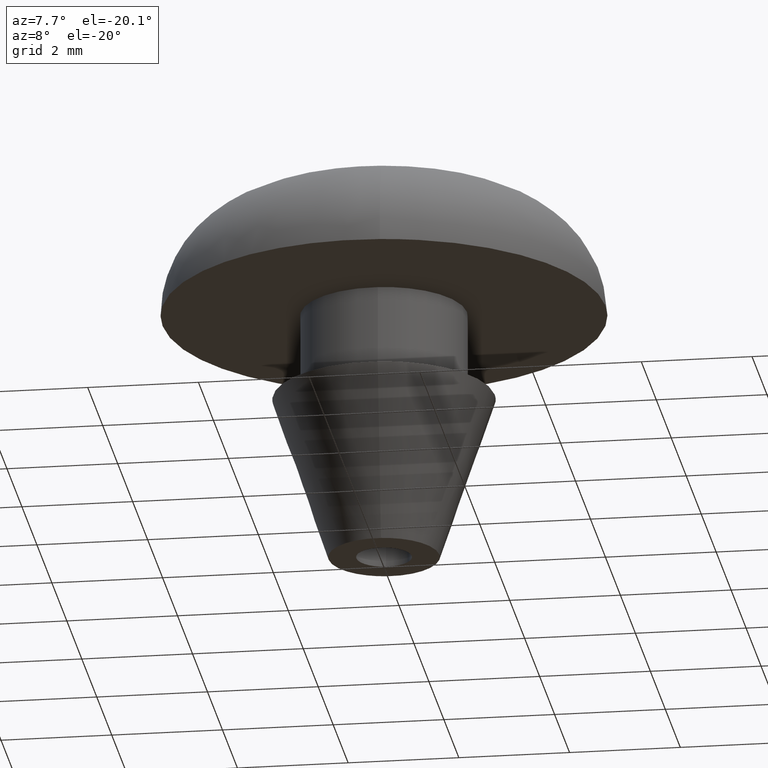
[diagram: clean part render]
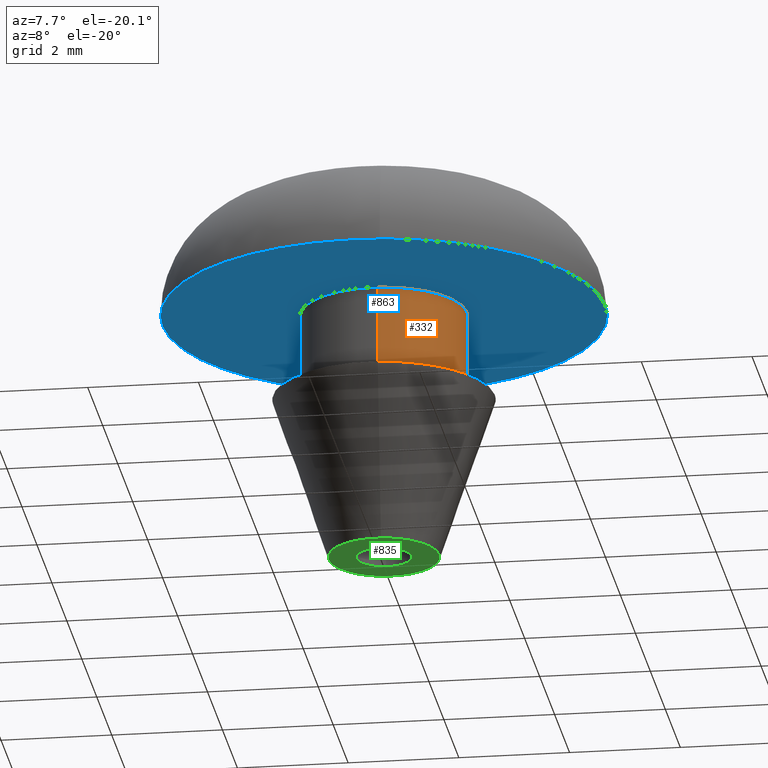
[diagram: same view with three faces highlighted in distinct colors, each labeled with its STEP entity id]
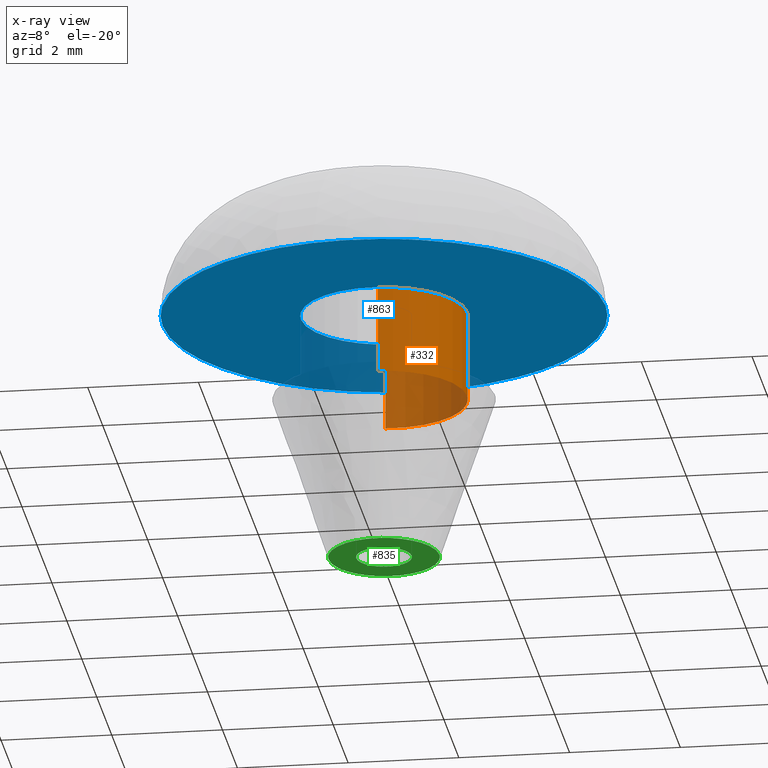
[diagram: x-ray of the same camera — body ghosted, the three highlighted faces saturated]
A machine part, auxiliary view with three faces highlighted in distinct colors.
The next image is the same camera in x-ray (body ghosted, the three faces saturated) — at least one of them is partly hidden behind the body in this view.
Their STEP definitions:

[orange] entity #332 — the highlighted face is a freeform B-spline surface patch.
#230=CARTESIAN_POINT('',(-0.177051351985138,1.489514289545500,4.640000000000001));
#231=CARTESIAN_POINT('',(-0.134422092956966,1.494581423172908,4.640000000000001));
#232=CARTESIAN_POINT('',(-0.091572809302285,1.497202197632800,4.640000000000001));
#233=CARTESIAN_POINT('',(1.405629388330515,1.588775006935085,4.640000000000001));
#234=CARTESIAN_POINT('',(1.497202197632800,0.091572809302285,4.640000000000001));
#235=CARTESIAN_POINT('',(1.588775006935085,-1.405629388330515,4.640000000000001));
#236=CARTESIAN_POINT('',(0.091572809302285,-1.497202197632800,4.640000000000001));
#237=CARTESIAN_POINT('',(-0.177051351985138,1.489514289545500,2.959000000000000));
#238=CARTESIAN_POINT('',(-0.134422092956966,1.494581423172908,2.959000000000001));
#239=CARTESIAN_POINT('',(-0.091572809302285,1.497202197632800,2.959000000000000));
#240=CARTESIAN_POINT('',(1.405629388330515,1.588775006935085,2.959000000000000));
#241=CARTESIAN_POINT('',(1.497202197632800,0.091572809302285,2.959000000000000));
#242=CARTESIAN_POINT('',(1.588775006935085,-1.405629388330515,2.959000000000000));
#243=CARTESIAN_POINT('',(0.091572809302285,-1.497202197632800,2.959000000000000));
#251=(BOUNDED_SURFACE()B_SPLINE_SURFACE(2,1,((#230,#237),(#231,#238),(#232,#239),(#233,#240),(#234,#241),(#235,#242),(#236,#243)),.UNSPECIFIED.,.F.,.F.,.U.)B_SPLINE_SURFACE_WITH_KNOTS((3,2,2,3),(2,2),(3.078760800517997,3.141592653589793,4.712388980384690,6.283185307179586),(0.0,1.0),.UNSPECIFIED.)GEOMETRIC_REPRESENTATION_ITEM()RATIONAL_B_SPLINE_SURFACE(((0.977505800795127,0.977505800795127),(0.988284271247462,0.988284271247462),(1.0,1.0),(0.707106781186548,0.707106781186548),(1.0,1.0),(0.707106781186548,0.707106781186548),(1.0,1.0)))REPRESENTATION_ITEM('')SURFACE());
#252=CARTESIAN_POINT('',(-0.177050448908415,1.489514396889302,4.599999999999993));
#253=VERTEX_POINT('',#252);
#254=CARTESIAN_POINT('',(1.500000000000000,0.0,4.600000000000000));
#255=VERTEX_POINT('',#254);
#256=CARTESIAN_POINT('',(-0.177050448908415,1.489514396889302,4.599999999999993));
#257=CARTESIAN_POINT('',(-0.088835266854029,1.500000000000000,4.600000000000000));
#258=CARTESIAN_POINT('',(0.0,1.500000000000000,4.600000000000000));
#259=CARTESIAN_POINT('',(1.500000000000000,1.500000000000000,4.599999999999999));
#260=CARTESIAN_POINT('',(1.500000000000000,0.0,4.600000000000000));
#268=(BOUNDED_CURVE()B_SPLINE_CURVE(2,(#256,#257,#258,#259,#260),.UNSPECIFIED.,.F.,.U.)B_SPLINE_CURVE_WITH_KNOTS((3,2,3),(0.229562678445430,0.250000000000000,0.500000000000000),.UNSPECIFIED.)CURVE()GEOMETRIC_REPRESENTATION_ITEM()RATIONAL_B_SPLINE_CURVE((0.956027155859047,0.976056188423826,1.0,0.707106781186548,1.0))REPRESENTATION_ITEM(''));
#269=EDGE_CURVE('',#253,#255,#268,.T.);
#270=ORIENTED_EDGE('',*,*,#269,.T.);
#271=CARTESIAN_POINT('',(0.091571162752735,-1.497202298338268,4.600000000000012));
#272=VERTEX_POINT('',#271);
#273=CARTESIAN_POINT('',(1.500000000000000,0.0,4.600000000000000));
#274=CARTESIAN_POINT('',(1.500000000000000,-1.411060655072693,4.600000000000001));
#275=CARTESIAN_POINT('',(0.091571162752735,-1.497202298338268,4.600000000000014));
#283=(BOUNDED_CURVE()B_SPLINE_CURVE(2,(#273,#274,#275),.UNSPECIFIED.,.F.,.U.)B_SPLINE_CURVE_WITH_KNOTS((3,3),(0.500000000000000,0.739333152000493),.UNSPECIFIED.)CURVE()GEOMETRIC_REPRESENTATION_ITEM()RATIONAL_B_SPLINE_CURVE((1.0,0.719603770967226,0.976072448362179))REPRESENTATION_ITEM(''));
#284=EDGE_CURVE('',#255,#272,#283,.T.);
#285=ORIENTED_EDGE('',*,*,#284,.T.);
#286=CARTESIAN_POINT('',(0.091571182612992,-1.497202297123606,3.0));
#287=VERTEX_POINT('',#286);
#288=CARTESIAN_POINT('',(0.091571162752735,-1.497202298338268,4.600000000000012));
#289=CARTESIAN_POINT('',(0.091571182612992,-1.497202297123606,3.0));
#290=QUASI_UNIFORM_CURVE('',1,(#288,#289),.UNSPECIFIED.,.F.,.U.);
#291=EDGE_CURVE('',#272,#287,#290,.T.);
#292=ORIENTED_EDGE('',*,*,#291,.T.);
#293=CARTESIAN_POINT('',(1.500000000000000,0.0,3.0));
#294=VERTEX_POINT('',#293);
#295=CARTESIAN_POINT('',(1.500000000000000,0.0,3.0));
#296=CARTESIAN_POINT('',(1.500000000000000,-1.411060636320122,3.000000000000000));
#297=CARTESIAN_POINT('',(0.091571182612992,-1.497202297123605,3.000000000000001));
#305=(BOUNDED_CURVE()B_SPLINE_CURVE(2,(#295,#296,#297),.UNSPECIFIED.,.F.,.U.)B_SPLINE_CURVE_WITH_KNOTS((3,3),(0.500000000000000,0.739333149711674),.UNSPECIFIED.)CURVE()GEOMETRIC_REPRESENTATION_ITEM()RATIONAL_B_SPLINE_CURVE((1.0,0.719603773648744,0.976072443456796))REPRESENTATION_ITEM(''));
#306=EDGE_CURVE('',#294,#287,#305,.T.);
#307=ORIENTED_EDGE('',*,*,#306,.F.);
#308=CARTESIAN_POINT('',(-0.177050459774724,1.489514395597690,3.0));
#309=VERTEX_POINT('',#308);
#310=CARTESIAN_POINT('',(-0.177050459774724,1.489514395597690,3.000000000000001));
#311=CARTESIAN_POINT('',(-0.088835277835213,1.500000000000000,3.000000000000000));
#312=CARTESIAN_POINT('',(0.0,1.500000000000000,3.0));
#313=CARTESIAN_POINT('',(1.500000000000000,1.500000000000000,3.0));
#314=CARTESIAN_POINT('',(1.500000000000000,0.0,3.0));
#322=(BOUNDED_CURVE()B_SPLINE_CURVE(2,(#310,#311,#312,#313,#314),.UNSPECIFIED.,.F.,.U.)B_SPLINE_CURVE_WITH_KNOTS((3,2,3),(0.229562675979604,0.250000000000000,0.500000000000000),.UNSPECIFIED.)CURVE()GEOMETRIC_REPRESENTATION_ITEM()RATIONAL_B_SPLINE_CURVE((0.956027151025916,0.976056185534931,1.0,0.707106781186548,1.0))REPRESENTATION_ITEM(''));
#323=EDGE_CURVE('',#309,#294,#322,.T.);
#324=ORIENTED_EDGE('',*,*,#323,.F.);
#325=CARTESIAN_POINT('',(-0.177050448908415,1.489514396889302,4.599999999999993));
#326=CARTESIAN_POINT('',(-0.177050459774724,1.489514395597690,3.0));
#327=QUASI_UNIFORM_CURVE('',1,(#325,#326),.UNSPECIFIED.,.F.,.U.);
#328=EDGE_CURVE('',#253,#309,#327,.T.);
#329=ORIENTED_EDGE('',*,*,#328,.F.);
#330=EDGE_LOOP('',(#270,#285,#292,#307,#324,#329));
#331=FACE_OUTER_BOUND('',#330,.T.);
#332=ADVANCED_FACE('',(#331),#251,.T.);

[blue] entity #863 — the highlighted face is a freeform B-spline surface patch.
#252=CARTESIAN_POINT('',(-0.177050448908415,1.489514396889302,4.599999999999993));
#253=VERTEX_POINT('',#252);
#254=CARTESIAN_POINT('',(1.500000000000000,0.0,4.600000000000000));
#255=VERTEX_POINT('',#254);
#256=CARTESIAN_POINT('',(-0.177050448908415,1.489514396889302,4.599999999999993));
#257=CARTESIAN_POINT('',(-0.088835266854029,1.500000000000000,4.600000000000000));
#258=CARTESIAN_POINT('',(0.0,1.500000000000000,4.600000000000000));
#259=CARTESIAN_POINT('',(1.500000000000000,1.500000000000000,4.599999999999999));
#260=CARTESIAN_POINT('',(1.500000000000000,0.0,4.600000000000000));
#268=(BOUNDED_CURVE()B_SPLINE_CURVE(2,(#256,#257,#258,#259,#260),.UNSPECIFIED.,.F.,.U.)B_SPLINE_CURVE_WITH_KNOTS((3,2,3),(0.229562678445430,0.250000000000000,0.500000000000000),.UNSPECIFIED.)CURVE()GEOMETRIC_REPRESENTATION_ITEM()RATIONAL_B_SPLINE_CURVE((0.956027155859047,0.976056188423826,1.0,0.707106781186548,1.0))REPRESENTATION_ITEM(''));
#269=EDGE_CURVE('',#253,#255,#268,.T.);
#271=CARTESIAN_POINT('',(0.091571162752735,-1.497202298338268,4.600000000000012));
#272=VERTEX_POINT('',#271);
#273=CARTESIAN_POINT('',(1.500000000000000,0.0,4.600000000000000));
#274=CARTESIAN_POINT('',(1.500000000000000,-1.411060655072693,4.600000000000001));
#275=CARTESIAN_POINT('',(0.091571162752735,-1.497202298338268,4.600000000000014));
#283=(BOUNDED_CURVE()B_SPLINE_CURVE(2,(#273,#274,#275),.UNSPECIFIED.,.F.,.U.)B_SPLINE_CURVE_WITH_KNOTS((3,3),(0.500000000000000,0.739333152000493),.UNSPECIFIED.)CURVE()GEOMETRIC_REPRESENTATION_ITEM()RATIONAL_B_SPLINE_CURVE((1.0,0.719603770967226,0.976072448362179))REPRESENTATION_ITEM(''));
#284=EDGE_CURVE('',#255,#272,#283,.T.);
#351=CARTESIAN_POINT('',(-1.500000000000000,0.0,4.600000000000000));
#352=VERTEX_POINT('',#351);
#353=CARTESIAN_POINT('',(-1.500000000000000,0.0,4.600000000000000));
#354=CARTESIAN_POINT('',(-1.500000000000000,1.332263415772623,4.600000000000000));
#355=CARTESIAN_POINT('',(-0.177050448908415,1.489514396889302,4.599999999999993));
#363=(BOUNDED_CURVE()B_SPLINE_CURVE(2,(#353,#354,#355),.UNSPECIFIED.,.F.,.U.)B_SPLINE_CURVE_WITH_KNOTS((3,3),(0.0,0.229562678445430),.UNSPECIFIED.)CURVE()GEOMETRIC_REPRESENTATION_ITEM()RATIONAL_B_SPLINE_CURVE((1.0,0.731050592762722,0.956027155859047))REPRESENTATION_ITEM(''));
#364=EDGE_CURVE('',#352,#253,#363,.T.);
#398=CARTESIAN_POINT('',(0.091571162752735,-1.497202298338268,4.600000000000014));
#399=CARTESIAN_POINT('',(0.045828319364795,-1.499999999999999,4.600000000000001));
#400=CARTESIAN_POINT('',(0.0,-1.500000000000000,4.600000000000000));
#401=CARTESIAN_POINT('',(-1.500000000000000,-1.500000000000000,4.599999999999999));
#402=CARTESIAN_POINT('',(-1.500000000000000,0.0,4.600000000000000));
#410=(BOUNDED_CURVE()B_SPLINE_CURVE(2,(#398,#399,#400,#401,#402),.UNSPECIFIED.,.F.,.U.)B_SPLINE_CURVE_WITH_KNOTS((3,2,3),(0.739333152000493,0.750000000000000,1.0),.UNSPECIFIED.)CURVE()GEOMETRIC_REPRESENTATION_ITEM()RATIONAL_B_SPLINE_CURVE((0.976072448362179,0.987503010219322,1.0,0.707106781186548,1.0))REPRESENTATION_ITEM(''));
#411=EDGE_CURVE('',#272,#352,#410,.T.);
#650=CARTESIAN_POINT('',(-4.0,0.0,4.600000000000000));
#651=VERTEX_POINT('',#650);
#665=CARTESIAN_POINT('',(0.461856760234681,-3.973246573398824,4.600000000000000));
#666=VERTEX_POINT('',#665);
#667=CARTESIAN_POINT('',(0.461856760234681,-3.973246573398825,4.600000000000000));
#668=CARTESIAN_POINT('',(0.231703157729662,-4.000000000000001,4.600000000000000));
#669=CARTESIAN_POINT('',(0.0,-4.0,4.600000000000000));
#670=CARTESIAN_POINT('',(-4.000000000000000,-4.000000000000000,4.599999999999999));
#671=CARTESIAN_POINT('',(-4.0,0.0,4.600000000000000));
#679=(BOUNDED_CURVE()B_SPLINE_CURVE(2,(#667,#668,#669,#670,#671),.UNSPECIFIED.,.F.,.U.)B_SPLINE_CURVE_WITH_KNOTS((3,2,3),(0.730000013374359,0.750000000000000,1.0),.UNSPECIFIED.)CURVE()GEOMETRIC_REPRESENTATION_ITEM()RATIONAL_B_SPLINE_CURVE((0.956886144514643,0.976568558163960,1.0,0.707106781186548,1.0))REPRESENTATION_ITEM(''));
#680=EDGE_CURVE('',#666,#651,#679,.T.);
#757=CARTESIAN_POINT('',(4.0,0.0,4.600000000000000));
#758=VERTEX_POINT('',#757);
#759=CARTESIAN_POINT('',(4.0,0.0,4.600000000000000));
#760=CARTESIAN_POINT('',(4.000000000000000,-3.561967086833224,4.600000000000000));
#761=CARTESIAN_POINT('',(0.461856760234681,-3.973246573398825,4.600000000000000));
#769=(BOUNDED_CURVE()B_SPLINE_CURVE(2,(#759,#760,#761),.UNSPECIFIED.,.F.,.U.)B_SPLINE_CURVE_WITH_KNOTS((3,3),(0.500000000000000,0.730000013374358),.UNSPECIFIED.)CURVE()GEOMETRIC_REPRESENTATION_ITEM()RATIONAL_B_SPLINE_CURVE((1.0,0.730538223022588,0.956886144514641))REPRESENTATION_ITEM(''));
#770=EDGE_CURVE('',#758,#666,#769,.T.);
#772=CARTESIAN_POINT('',(-4.0,0.0,4.600000000000000));
#773=CARTESIAN_POINT('',(-4.000000000000000,4.000000000000000,4.599999999999999));
#774=CARTESIAN_POINT('',(0.0,4.0,4.600000000000000));
#775=CARTESIAN_POINT('',(4.000000000000000,4.000000000000000,4.599999999999999));
#776=CARTESIAN_POINT('',(4.0,0.0,4.600000000000000));
#784=(BOUNDED_CURVE()B_SPLINE_CURVE(2,(#772,#773,#774,#775,#776),.UNSPECIFIED.,.F.,.U.)B_SPLINE_CURVE_WITH_KNOTS((3,2,3),(0.0,0.250000000000000,0.500000000000000),.UNSPECIFIED.)CURVE()GEOMETRIC_REPRESENTATION_ITEM()RATIONAL_B_SPLINE_CURVE((1.0,0.707106781186548,1.0,0.707106781186548,1.0))REPRESENTATION_ITEM(''));
#785=EDGE_CURVE('',#651,#758,#784,.T.);
#847=CARTESIAN_POINT('',(4.399599984494448,-4.399577243043528,4.600000000000000));
#848=CARTESIAN_POINT('',(-4.399600199071169,-4.399577243043528,4.600000000000000));
#849=CARTESIAN_POINT('',(4.399599984494448,4.399599117127109,4.600000000000000));
#850=CARTESIAN_POINT('',(-4.399600199071169,4.399599117127109,4.600000000000000));
#851=B_SPLINE_SURFACE_WITH_KNOTS('',1,1,((#847,#849),(#848,#850)),.UNSPECIFIED.,.F.,.F.,.U.,(2,2),(2,2),(0.0,8.799200183565617),(0.0,8.799176360170637),.UNSPECIFIED.);
#852=ORIENTED_EDGE('',*,*,#785,.T.);
#853=ORIENTED_EDGE('',*,*,#770,.T.);
#854=ORIENTED_EDGE('',*,*,#680,.T.);
#855=EDGE_LOOP('',(#852,#853,#854));
#856=FACE_OUTER_BOUND('',#855,.T.);
#857=ORIENTED_EDGE('',*,*,#284,.F.);
#858=ORIENTED_EDGE('',*,*,#269,.F.);
#859=ORIENTED_EDGE('',*,*,#364,.F.);
#860=ORIENTED_EDGE('',*,*,#411,.F.);
#861=EDGE_LOOP('',(#857,#858,#859,#860));
#862=FACE_BOUND('',#861,.T.);
#863=ADVANCED_FACE('',(#856,#862),#851,.T.);

[green] entity #835 — the highlighted face is a freeform B-spline surface patch.
#85=CARTESIAN_POINT('',(0.059017117343035,-0.496504763180091,-7.808428E-017));
#86=VERTEX_POINT('',#85);
#92=CARTESIAN_POINT('',(-0.500000000000000,0.0,0.0));
#93=VERTEX_POINT('',#92);
#94=CARTESIAN_POINT('',(0.059017117343035,-0.496504763180091,-7.808428E-017));
#95=CARTESIAN_POINT('',(0.029612059840765,-0.500000000000000,0.0));
#96=CARTESIAN_POINT('',(0.0,-0.500000000000000,0.0));
#97=CARTESIAN_POINT('',(-0.500000000000000,-0.500000000000000,0.0));
#98=CARTESIAN_POINT('',(-0.500000000000000,0.0,0.0));
#106=(BOUNDED_CURVE()B_SPLINE_CURVE(2,(#94,#95,#96,#97,#98),.UNSPECIFIED.,.F.,.U.)B_SPLINE_CURVE_WITH_KNOTS((3,2,3),(0.229562473505667,0.250000000000000,0.500000000000000),.UNSPECIFIED.)CURVE()GEOMETRIC_REPRESENTATION_ITEM()RATIONAL_B_SPLINE_CURVE((0.956026754168330,0.976055948321959,1.0,0.707106781186548,1.0))REPRESENTATION_ITEM(''));
#107=EDGE_CURVE('',#86,#93,#106,.T.);
#109=CARTESIAN_POINT('',(-0.030523833243788,0.499067425909480,4.579670E-016));
#110=VERTEX_POINT('',#109);
#111=CARTESIAN_POINT('',(-0.500000000000000,0.0,0.0));
#112=CARTESIAN_POINT('',(-0.500000000000000,0.470353857806655,0.0));
#113=CARTESIAN_POINT('',(-0.030523833243788,0.499067425909480,4.579670E-016));
#121=(BOUNDED_CURVE()B_SPLINE_CURVE(2,(#111,#112,#113),.UNSPECIFIED.,.F.,.U.)B_SPLINE_CURVE_WITH_KNOTS((3,3),(0.500000000000000,0.739333264088066),.UNSPECIFIED.)CURVE()GEOMETRIC_REPRESENTATION_ITEM()RATIONAL_B_SPLINE_CURVE((1.0,0.719603639648465,0.976072688587702))REPRESENTATION_ITEM(''));
#122=EDGE_CURVE('',#93,#110,#121,.T.);
#196=CARTESIAN_POINT('',(0.500000000000000,0.0,0.0));
#197=VERTEX_POINT('',#196);
#198=CARTESIAN_POINT('',(-0.030523833243788,0.499067425909480,4.579670E-016));
#199=CARTESIAN_POINT('',(-0.015275943901719,0.500000000000000,0.0));
#200=CARTESIAN_POINT('',(0.0,0.500000000000000,0.0));
#201=CARTESIAN_POINT('',(0.500000000000000,0.500000000000000,0.0));
#202=CARTESIAN_POINT('',(0.500000000000000,0.0,0.0));
#210=(BOUNDED_CURVE()B_SPLINE_CURVE(2,(#198,#199,#200,#201,#202),.UNSPECIFIED.,.F.,.U.)B_SPLINE_CURVE_WITH_KNOTS((3,2,3),(0.739333264088067,0.750000000000000,1.0),.UNSPECIFIED.)CURVE()GEOMETRIC_REPRESENTATION_ITEM()RATIONAL_B_SPLINE_CURVE((0.976072688587704,0.987503141538084,1.0,0.707106781186548,1.0))REPRESENTATION_ITEM(''));
#211=EDGE_CURVE('',#110,#197,#210,.T.);
#213=CARTESIAN_POINT('',(0.500000000000000,0.0,0.0));
#214=CARTESIAN_POINT('',(0.500000000000000,-0.444087262949283,0.0));
#215=CARTESIAN_POINT('',(0.059017117343035,-0.496504763180091,-7.808428E-017));
#223=(BOUNDED_CURVE()B_SPLINE_CURVE(2,(#213,#214,#215),.UNSPECIFIED.,.F.,.U.)B_SPLINE_CURVE_WITH_KNOTS((3,3),(0.0,0.229562473505667),.UNSPECIFIED.)CURVE()GEOMETRIC_REPRESENTATION_ITEM()RATIONAL_B_SPLINE_CURVE((1.0,0.731050832864589,0.956026754168330))REPRESENTATION_ITEM(''));
#224=EDGE_CURVE('',#197,#86,#223,.T.);
#434=CARTESIAN_POINT('',(-1.0,0.0,0.0));
#435=VERTEX_POINT('',#434);
#436=CARTESIAN_POINT('',(-0.078457802611758,0.996917092227118,-0.000001026649899));
#437=VERTEX_POINT('',#436);
#438=CARTESIAN_POINT('',(-1.0,0.0,0.0));
#439=CARTESIAN_POINT('',(-0.999999986575181,0.924391498852421,-0.000000513324950));
#440=CARTESIAN_POINT('',(-0.078457802611758,0.996917092227118,-0.000001026649899));
#448=(BOUNDED_CURVE()B_SPLINE_CURVE(2,(#438,#439,#440),.UNSPECIFIED.,.F.,.U.)B_SPLINE_CURVE_WITH_KNOTS((3,3),(0.0,0.236331518373108),.UNSPECIFIED.)CURVE()GEOMETRIC_REPRESENTATION_ITEM()RATIONAL_B_SPLINE_CURVE((1.0,0.723120403506519,0.969723810579741))REPRESENTATION_ITEM(''));
#449=EDGE_CURVE('',#435,#437,#448,.T.);
#451=CARTESIAN_POINT('',(0.078457802611758,-0.996917092227118,-0.000001026649899));
#452=VERTEX_POINT('',#451);
#453=CARTESIAN_POINT('',(0.078457802611758,-0.996917092227118,-0.000001026649899));
#454=CARTESIAN_POINT('',(0.039289444574258,-0.999999665032785,-0.000001008006522));
#455=CARTESIAN_POINT('',(-0.000000025834610,-0.999999671734833,-0.000000987838257));
#456=CARTESIAN_POINT('',(-1.000000012409791,-0.999999842316099,-0.000000474513307));
#457=CARTESIAN_POINT('',(-1.0,0.0,0.0));
#465=(BOUNDED_CURVE()B_SPLINE_CURVE(2,(#453,#454,#455,#456,#457),.UNSPECIFIED.,.F.,.U.)B_SPLINE_CURVE_WITH_KNOTS((3,2,3),(0.736331518373108,0.750000000000000,1.0),.UNSPECIFIED.)CURVE()GEOMETRIC_REPRESENTATION_ITEM()RATIONAL_B_SPLINE_CURVE((0.969723810579741,0.983986377680029,1.0,0.707106781186548,1.0))REPRESENTATION_ITEM(''));
#466=EDGE_CURVE('',#452,#435,#465,.T.);
#533=CARTESIAN_POINT('',(1.0,0.0,0.0));
#534=VERTEX_POINT('',#533);
#535=CARTESIAN_POINT('',(-0.078457802611758,0.996917092227118,-0.000001026649899));
#536=CARTESIAN_POINT('',(-0.039289444574258,0.999999665032785,-0.000001008006522));
#537=CARTESIAN_POINT('',(0.000000025834609,0.999999671734833,-0.000000987838257));
#538=CARTESIAN_POINT('',(1.000000012409791,0.999999842316099,-0.000000474513307));
#539=CARTESIAN_POINT('',(1.0,0.0,0.0));
#547=(BOUNDED_CURVE()B_SPLINE_CURVE(2,(#535,#536,#537,#538,#539),.UNSPECIFIED.,.F.,.U.)B_SPLINE_CURVE_WITH_KNOTS((3,2,3),(0.236331518373108,0.250000000000000,0.500000000000000),.UNSPECIFIED.)CURVE()GEOMETRIC_REPRESENTATION_ITEM()RATIONAL_B_SPLINE_CURVE((0.969723810579741,0.983986377680029,1.0,0.707106781186548,1.0))REPRESENTATION_ITEM(''));
#548=EDGE_CURVE('',#437,#534,#547,.T.);
#582=CARTESIAN_POINT('',(1.0,0.0,0.0));
#583=CARTESIAN_POINT('',(0.999999986575181,-0.924391498852421,-0.000000513324950));
#584=CARTESIAN_POINT('',(0.078457802611758,-0.996917092227118,-0.000001026649899));
#592=(BOUNDED_CURVE()B_SPLINE_CURVE(2,(#582,#583,#584),.UNSPECIFIED.,.F.,.U.)B_SPLINE_CURVE_WITH_KNOTS((3,3),(0.500000000000000,0.736331518373108),.UNSPECIFIED.)CURVE()GEOMETRIC_REPRESENTATION_ITEM()RATIONAL_B_SPLINE_CURVE((1.0,0.723120403506519,0.969723810579741))REPRESENTATION_ITEM(''));
#593=EDGE_CURVE('',#534,#452,#592,.T.);
#818=CARTESIAN_POINT('',(1.099899996123612,-1.099594438042932,0.0));
#819=CARTESIAN_POINT('',(-1.099900049767792,-1.099594438042932,0.0));
#820=CARTESIAN_POINT('',(1.099899996123612,1.099594491687113,0.0));
#821=CARTESIAN_POINT('',(-1.099900049767792,1.099594491687113,0.0));
#822=B_SPLINE_SURFACE_WITH_KNOTS('',1,1,((#818,#820),(#819,#821)),.UNSPECIFIED.,.F.,.F.,.U.,(2,2),(2,2),(0.0,2.199800045891404),(0.0,2.199188929730045),.UNSPECIFIED.);
#823=ORIENTED_EDGE('',*,*,#449,.T.);
#824=ORIENTED_EDGE('',*,*,#548,.T.);
#825=ORIENTED_EDGE('',*,*,#593,.T.);
#826=ORIENTED_EDGE('',*,*,#466,.T.);
#827=EDGE_LOOP('',(#823,#824,#825,#826));
#828=FACE_OUTER_BOUND('',#827,.T.);
#829=ORIENTED_EDGE('',*,*,#122,.F.);
#830=ORIENTED_EDGE('',*,*,#107,.F.);
#831=ORIENTED_EDGE('',*,*,#224,.F.);
#832=ORIENTED_EDGE('',*,*,#211,.F.);
#833=EDGE_LOOP('',(#829,#830,#831,#832));
#834=FACE_BOUND('',#833,.T.);
#835=ADVANCED_FACE('',(#828,#834),#822,.T.);